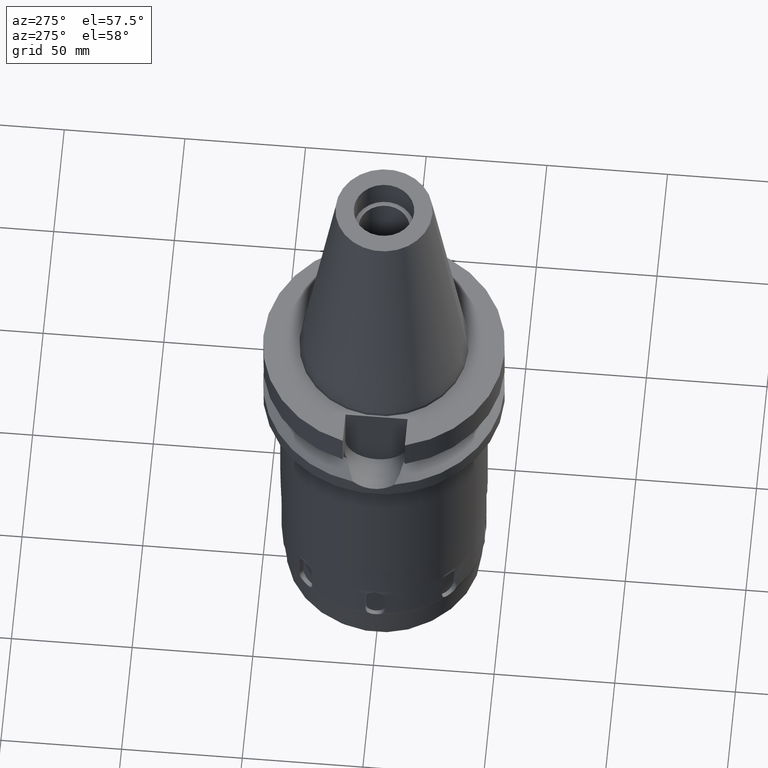
[diagram: clean part render]
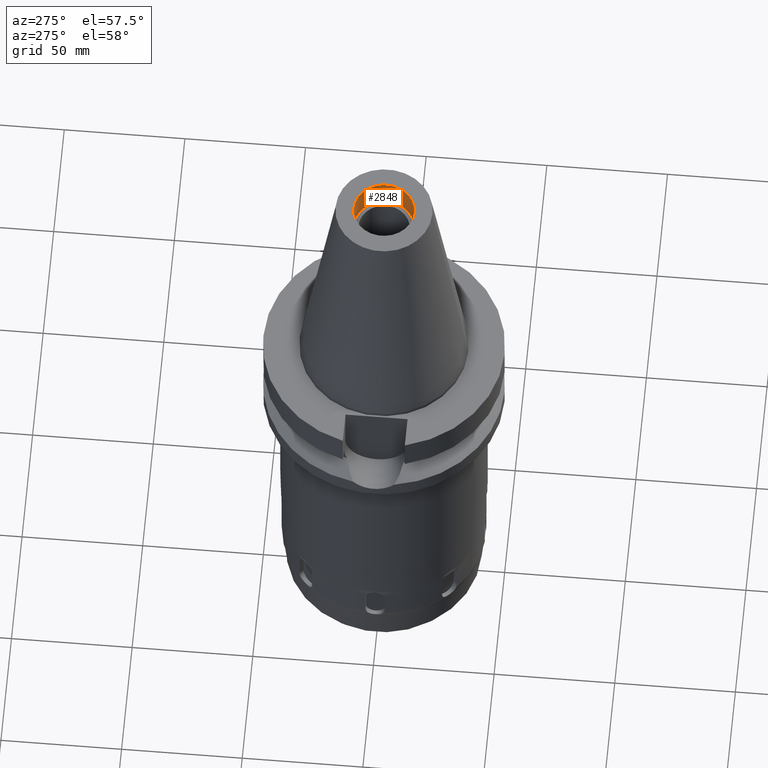
[diagram: same view with one face highlighted and labeled with its STEP entity id]
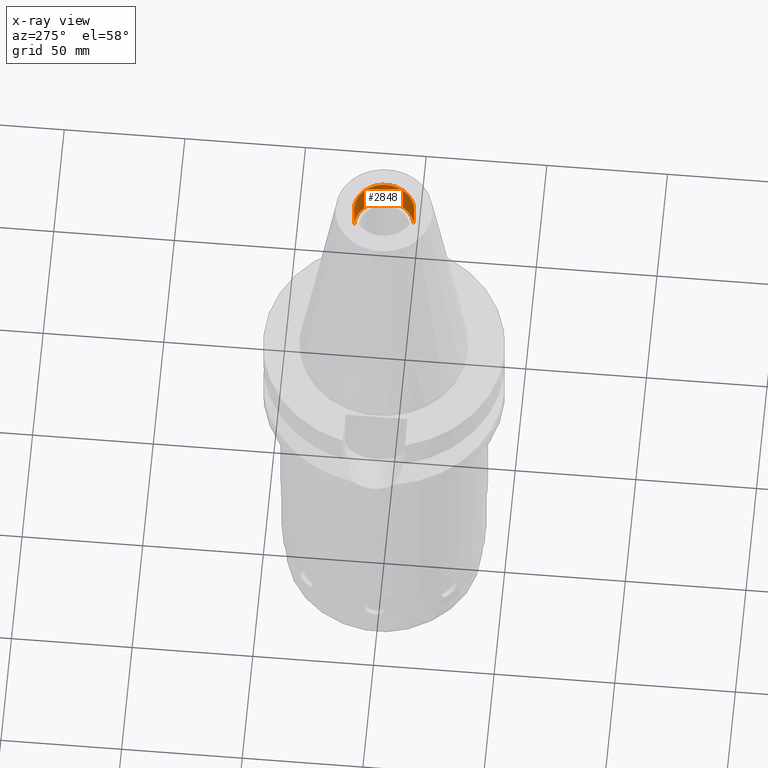
[diagram: x-ray of the same camera — body ghosted, the highlighted face saturated]
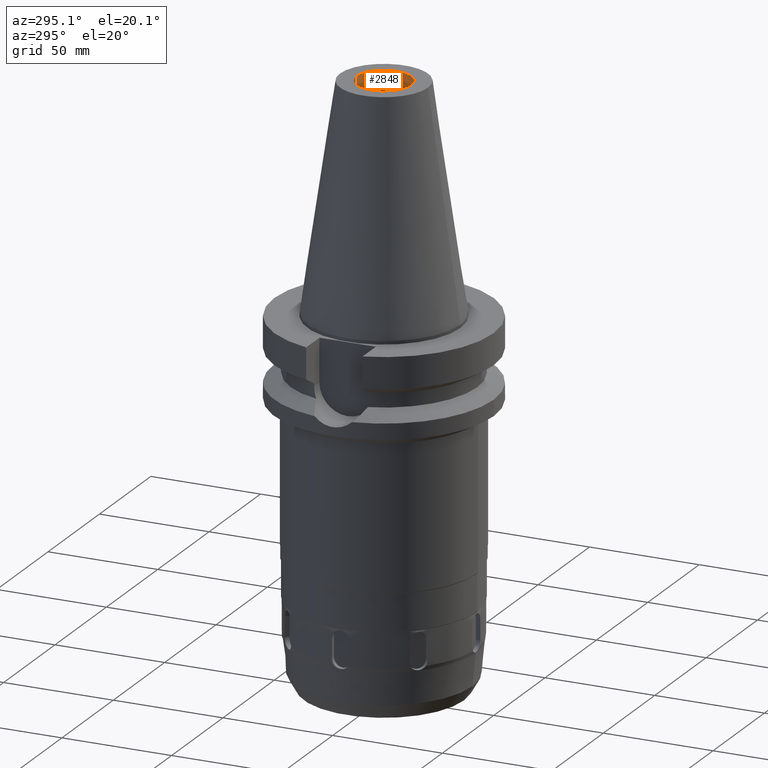
[diagram: same view with one face highlighted and labeled with its STEP entity id]
A machine part, auxiliary view. The second image highlights one B-rep face of the part: STEP entity #2848.
The next image is the same camera in x-ray: the body ghosted, the highlighted face saturated — about 0% of this face is hidden behind the body in this view.
A second angle (auxiliary view) of the same face is appended — the face is thin or edge-on in the first view.
In plain terms, the highlighted cylindrical surface (edge-blend (fillet) strip) has radius 12.5 mm, axis along (0, 0, -1).
Its self-contained STEP definition (entity closure, byte-faithful):
#17=DIRECTION('',(0.E0,0.E0,1.E0));
#18=VECTOR('',#17,1.3E1);
#19=CARTESIAN_POINT('',(0.E0,1.25E1,8.88E1));
#20=LINE('',#19,#18);
#25=DIRECTION('',(0.E0,0.E0,1.E0));
#26=VECTOR('',#25,1.3E1);
#27=CARTESIAN_POINT('',(0.E0,-1.25E1,8.88E1));
#28=LINE('',#27,#26);
#40=CARTESIAN_POINT('',(0.E0,2.634705123686E-14,8.88E1));
#41=DIRECTION('',(0.E0,0.E0,-1.E0));
#42=DIRECTION('',(0.E0,1.E0,0.E0));
#43=AXIS2_PLACEMENT_3D('',#40,#41,#42);
#2026=CARTESIAN_POINT('',(0.E0,2.634705123686E-14,1.018E2));
#2027=DIRECTION('',(0.E0,0.E0,1.E0));
#2028=DIRECTION('',(0.E0,-1.E0,0.E0));
#2029=AXIS2_PLACEMENT_3D('',#2026,#2027,#2028);
#2472=CARTESIAN_POINT('',(0.E0,1.25E1,8.88E1));
#2473=CARTESIAN_POINT('',(0.E0,1.25E1,1.018E2));
#2474=VERTEX_POINT('',#2472);
#2475=VERTEX_POINT('',#2473);
#2476=CARTESIAN_POINT('',(0.E0,-1.25E1,1.018E2));
#2477=VERTEX_POINT('',#2476);
#2478=CARTESIAN_POINT('',(0.E0,-1.25E1,8.88E1));
#2479=VERTEX_POINT('',#2478);
#2833=CARTESIAN_POINT('',(0.E0,2.634705123686E-14,1.1514E2));
#2834=DIRECTION('',(0.E0,0.E0,-1.E0));
#2835=DIRECTION('',(0.E0,-1.E0,0.E0));
#2836=AXIS2_PLACEMENT_3D('',#2833,#2834,#2835);
#2837=CYLINDRICAL_SURFACE('',#2836,1.25E1);
#2839=ORIENTED_EDGE('',*,*,#2838,.T.);
#2841=ORIENTED_EDGE('',*,*,#2840,.F.);
#2843=ORIENTED_EDGE('',*,*,#2842,.F.);
#2845=ORIENTED_EDGE('',*,*,#2844,.F.);
#2846=EDGE_LOOP('',(#2839,#2841,#2843,#2845));
#2847=FACE_OUTER_BOUND('',#2846,.F.);
#44=CIRCLE('',#43,1.25E1);
#2030=CIRCLE('',#2029,1.25E1);
#2838=EDGE_CURVE('',#2474,#2475,#20,.T.);
#2840=EDGE_CURVE('',#2477,#2475,#2030,.T.);
#2842=EDGE_CURVE('',#2479,#2477,#28,.T.);
#2844=EDGE_CURVE('',#2474,#2479,#44,.T.);
#2848=ADVANCED_FACE('',(#2847),#2837,.F.);